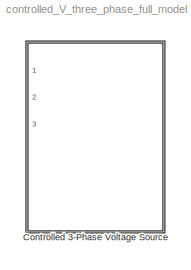
MODEL controlled_V_three_phase_full_model
KIND model
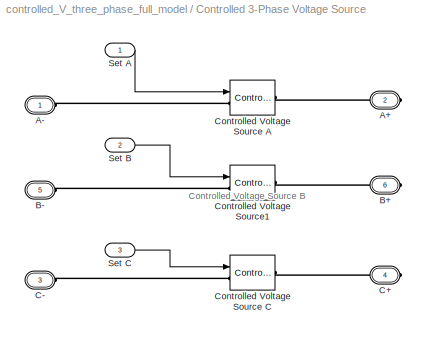
BLOCK [SubSystem] Controlled 3-Phase Voltage Source
  FunctionWithSeparateData = off
  MaskHideContents = off
  MinAlgLoopOccurrences = off
  Opaque = off
  Ports = [3, 0, 0, 0, 0, 3, 3]
  PropExecContextOutsideSubsystem = off
  RTWSystemCode = Auto
  RequestExecContextInheritance = off
  SID = 23
BLOCK [PMIOPort] Controlled 3-Phase Voltage Source/A+
  Port = 2
  SID = 26
  Side = Right
  Tag = PMCPort
BLOCK [PMIOPort] Controlled 3-Phase Voltage Source/A-
  Port = 1
  SID = 25
  Side = Left
  Tag = PMCPort
BLOCK [PMIOPort] Controlled 3-Phase Voltage Source/B+
  Port = 6
  SID = 32
  Side = Right
  Tag = PMCPort
BLOCK [PMIOPort] Controlled 3-Phase Voltage Source/B-
  Port = 5
  SID = 31
  Side = Left
  Tag = PMCPort
BLOCK [PMIOPort] Controlled 3-Phase Voltage Source/C+
  Port = 4
  SID = 30
  Side = Right
  Tag = PMCPort
BLOCK [PMIOPort] Controlled 3-Phase Voltage Source/C-
  Port = 3
  SID = 29
  Side = Left
  Tag = PMCPort
BLOCK [Reference] Controlled 3-Phase Voltage Source/Controlled Voltage Source A  REF=powerlib/Electrical\nSources/Controlled Voltage Source
  Amplitude = 0
  Frequency = 0
  FunctionWithSeparateData = off
  GeneratePreprocessorConditionals = off
  Initialize = on
  Measurements = None
  Phase = 0
  Ports = [1, 0, 0, 0, 0, 1, 1]
  RTWMemSecDataConstants = Inherit from model
  RTWMemSecDataInternal = Inherit from model
  RTWMemSecDataParameters = Inherit from model
  RTWMemSecFuncExecute = Inherit from model
  RTWMemSecFuncInitTerm = Inherit from model
  SID = 1
  ShowPortLabels = FromPortIcon
  SourceBlock = powerlib/Electrical\nSources/Controlled Voltage Source
  SourceType = Controlled Voltage Source
  Source_Type = AC
  SystemSampleTime = -1
BLOCK [Reference] Controlled 3-Phase Voltage Source/Controlled Voltage Source C  REF=powerlib/Electrical\nSources/Controlled Voltage Source
  Amplitude = 0
  Frequency = 0
  FunctionWithSeparateData = off
  GeneratePreprocessorConditionals = off
  Initialize = on
  Measurements = None
  Phase = 0
  Ports = [1, 0, 0, 0, 0, 1, 1]
  RTWMemSecDataConstants = Inherit from model
  RTWMemSecDataInternal = Inherit from model
  RTWMemSecDataParameters = Inherit from model
  RTWMemSecFuncExecute = Inherit from model
  RTWMemSecFuncInitTerm = Inherit from model
  SID = 3
  ShowPortLabels = FromPortIcon
  SourceBlock = powerlib/Electrical\nSources/Controlled Voltage Source
  SourceType = Controlled Voltage Source
  Source_Type = AC
  SystemSampleTime = -1
BLOCK [Reference] Controlled 3-Phase Voltage Source/Controlled Voltage Source1  REF=powerlib/Electrical\nSources/Controlled Voltage Source
  Amplitude = 0
  Frequency = 0
  FunctionWithSeparateData = off
  GeneratePreprocessorConditionals = off
  Initialize = on
  Measurements = None
  Phase = 0
  Ports = [1, 0, 0, 0, 0, 1, 1]
  RTWMemSecDataConstants = Inherit from model
  RTWMemSecDataInternal = Inherit from model
  RTWMemSecDataParameters = Inherit from model
  RTWMemSecFuncExecute = Inherit from model
  RTWMemSecFuncInitTerm = Inherit from model
  SID = 2
  ShowPortLabels = FromPortIcon
  SourceBlock = powerlib/Electrical\nSources/Controlled Voltage Source
  SourceType = Controlled Voltage Source
  Source_Type = AC
  SystemSampleTime = -1
BLOCK [Inport] Controlled 3-Phase Voltage Source/Set A
  IconDisplay = Port number
  PortDimensions = 1
  SID = 24
  VarSizeSig = No
BLOCK [Inport] Controlled 3-Phase Voltage Source/Set B
  IconDisplay = Port number
  Port = 2
  PortDimensions = 1
  SID = 27
  VarSizeSig = No
BLOCK [Inport] Controlled 3-Phase Voltage Source/Set C
  IconDisplay = Port number
  Port = 3
  PortDimensions = 1
  SID = 28
  VarSizeSig = No
ANNOTATION Controlled 3-Phase Voltage Source: Controlled Voltage Source B
LINE Controlled 3-Phase Voltage Source/Set A:1 -> Controlled 3-Phase Voltage Source/Controlled Voltage Source A:1
LINE Controlled 3-Phase Voltage Source/Set B:1 -> Controlled 3-Phase Voltage Source/Controlled Voltage Source1:1
LINE Controlled 3-Phase Voltage Source/Set C:1 -> Controlled 3-Phase Voltage Source/Controlled Voltage Source C:1
PLINE Controlled 3-Phase Voltage Source/A+:RConn1 -- Controlled 3-Phase Voltage Source/Controlled Voltage Source A:RConn1
PLINE Controlled 3-Phase Voltage Source/A-:RConn1 -- Controlled 3-Phase Voltage Source/Controlled Voltage Source A:LConn1
PLINE Controlled 3-Phase Voltage Source/B+:RConn1 -- Controlled 3-Phase Voltage Source/Controlled Voltage Source1:RConn1
PLINE Controlled 3-Phase Voltage Source/B-:RConn1 -- Controlled 3-Phase Voltage Source/Controlled Voltage Source1:LConn1
PLINE Controlled 3-Phase Voltage Source/C+:RConn1 -- Controlled 3-Phase Voltage Source/Controlled Voltage Source C:RConn1
PLINE Controlled 3-Phase Voltage Source/C-:RConn1 -- Controlled 3-Phase Voltage Source/Controlled Voltage Source C:LConn1
